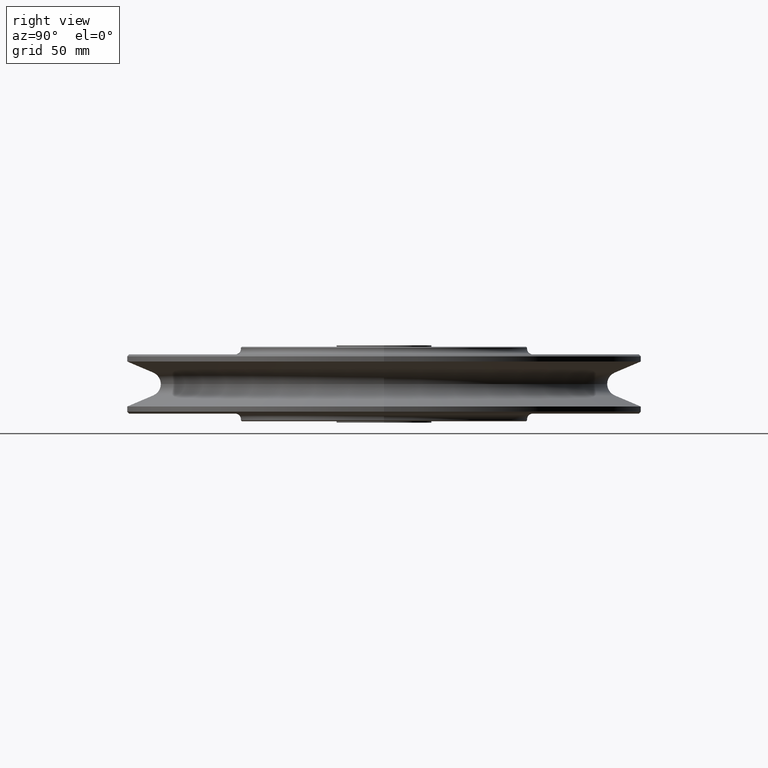
[diagram: clean part render]
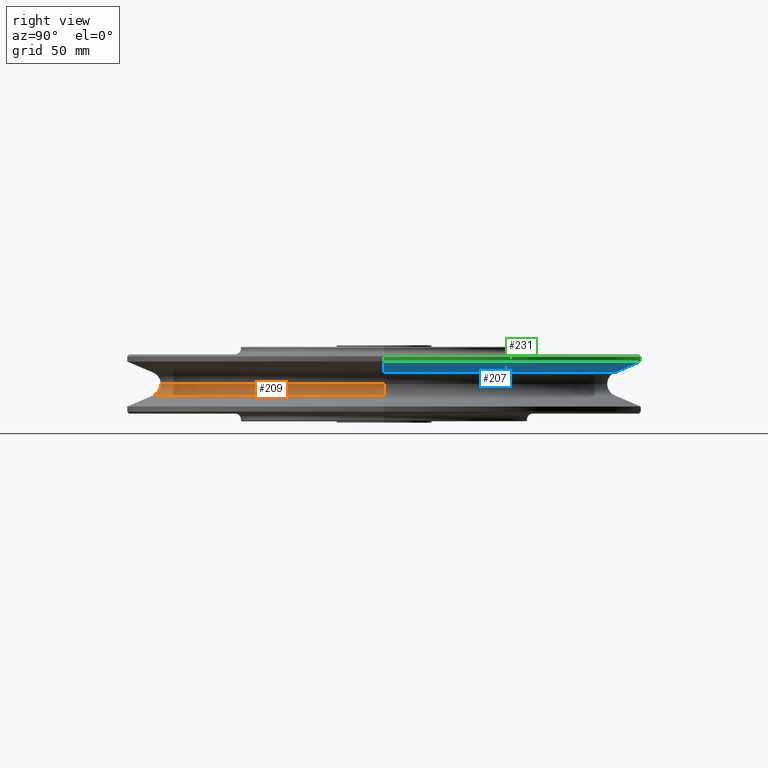
[diagram: same view with three faces highlighted in distinct colors, each labeled with its STEP entity id]
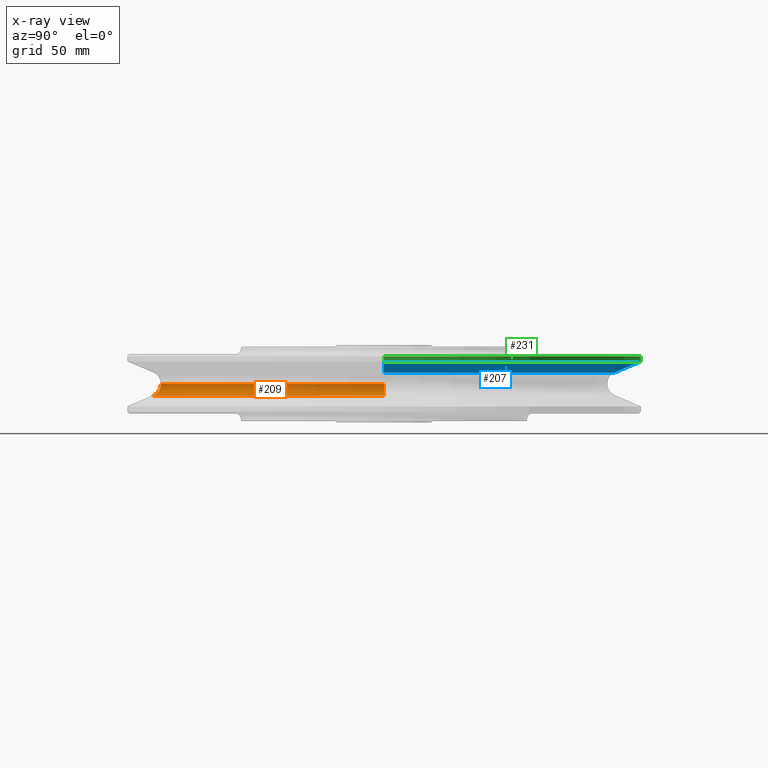
[diagram: x-ray of the same camera — body ghosted, the three highlighted faces saturated]
A machine part, right view with three faces highlighted in distinct colors.
The next image is the same camera in x-ray (body ghosted, the three faces saturated) — at least one of them is partly hidden behind the body in this view.
Their STEP definitions:

[orange] entity #209 — the highlighted toroidal blend (fillet) surface has major radius 123.5 mm and minor (blend) radius 6.5 mm.
#209=ADVANCED_FACE('',(#526),#527,.F.);
#526=FACE_OUTER_BOUND('',#976,.T.);
#527=TOROIDAL_SURFACE('',#977,123.4999998655,6.4999998655);
#976=EDGE_LOOP('',(#1535,#1536,#1537,#1538));
#977=AXIS2_PLACEMENT_3D('',#1539,#1540,#1541);
#1535=ORIENTED_EDGE('',*,*,#2919,.T.);
#1536=ORIENTED_EDGE('',*,*,#2926,.F.);
#1537=ORIENTED_EDGE('',*,*,#2927,.T.);
#1538=ORIENTED_EDGE('',*,*,#2928,.F.);
#1539=CARTESIAN_POINT('',(0.0,0.0,0.0));
#1540=DIRECTION('',(0.0,0.0,1.0));
#1541=DIRECTION('',(1.0,0.0,0.0));
#2919=EDGE_CURVE('',#3412,#3411,#3594,.T.);
#2926=EDGE_CURVE('',#3603,#3411,#3604,.T.);
#2927=EDGE_CURVE('',#3603,#3605,#3606,.T.);
#2928=EDGE_CURVE('',#3412,#3605,#3607,.T.);
#3411=VERTEX_POINT('',#4316);
#3412=VERTEX_POINT('',#4317);
#3594=CIRCLE('',#6011,117.0);
#3603=VERTEX_POINT('',#6022);
#3604=CIRCLE('',#6023,6.4999998655);
#3605=VERTEX_POINT('',#6024);
#3606=CIRCLE('',#6025,121.012558);
#3607=CIRCLE('',#6026,6.4999998655);
#4316=CARTESIAN_POINT('',(-117.0,1.38716009311259E-014,7.9602040297428E-016));
#4317=CARTESIAN_POINT('',(117.0,-1.38716009311259E-014,7.9602040297428E-016));
#6011=AXIS2_PLACEMENT_3D('',#10568,#10569,#10570);
#6022=CARTESIAN_POINT('',(-121.012558,1.48197641811333E-014,-6.005217));
#6023=AXIS2_PLACEMENT_3D('',#10579,#10580,#10581);
#6024=CARTESIAN_POINT('',(121.012558,0.0,-6.005217));
#6025=AXIS2_PLACEMENT_3D('',#10582,#10583,#10584);
#6026=AXIS2_PLACEMENT_3D('',#10585,#10586,#10587);
#10568=CARTESIAN_POINT('',(0.0,0.0,7.9602040297428E-016));
#10569=DIRECTION('',(-0.0,0.0,-1.0));
#10570=DIRECTION('',(-1.0,0.0,0.0));
#10579=CARTESIAN_POINT('',(-123.4999998655,1.51243879529983E-014,0.0));
#10580=DIRECTION('',(-1.22464679914735E-016,-1.0,0.0));
#10581=DIRECTION('',(-1.0,1.22464679914735E-016,-0.0));
#10582=CARTESIAN_POINT('',(0.0,0.0,-6.005217));
#10583=DIRECTION('',(0.0,0.0,1.0));
#10584=DIRECTION('',(1.0,0.0,0.0));
#10585=CARTESIAN_POINT('',(123.4999998655,-1.51243879529983E-014,0.0));
#10586=DIRECTION('',(-1.22464679914735E-016,-1.0,0.0));
#10587=DIRECTION('',(1.0,-1.22464679914735E-016,0.0));

[blue] entity #207 — the highlighted conical surface has half-angle 67.5 deg.
#207=ADVANCED_FACE('',(#523),#524,.T.);
#523=FACE_OUTER_BOUND('',#973,.T.);
#524=CONICAL_SURFACE('',#974,128.006279,1.17809722552658);
#973=EDGE_LOOP('',(#1527,#1528,#1529,#1530));
#974=AXIS2_PLACEMENT_3D('',#1531,#1532,#1533);
#1527=ORIENTED_EDGE('',*,*,#2922,.F.);
#1528=ORIENTED_EDGE('',*,*,#2818,.T.);
#1529=ORIENTED_EDGE('',*,*,#2923,.F.);
#1530=ORIENTED_EDGE('',*,*,#2924,.F.);
#1531=CARTESIAN_POINT('',(0.0,0.0,8.90211125));
#1532=DIRECTION('',(-0.0,-0.0,1.0));
#1533=DIRECTION('',(1.0,0.0,0.0));
#2818=EDGE_CURVE('',#3416,#3414,#3417,.T.);
#2922=EDGE_CURVE('',#3416,#3597,#3598,.T.);
#2923=EDGE_CURVE('',#3599,#3414,#3600,.T.);
#2924=EDGE_CURVE('',#3597,#3599,#3601,.T.);
#3414=VERTEX_POINT('',#4319);
#3416=VERTEX_POINT('',#4321);
#3417=CIRCLE('',#4322,121.012558);
#3597=VERTEX_POINT('',#6014);
#3598=LINE('',#6015,#6016);
#3599=VERTEX_POINT('',#6017);
#3600=LINE('',#6018,#6019);
#3601=CIRCLE('',#6020,135.0);
#4319=CARTESIAN_POINT('',(-121.012558,1.48197641811333E-014,6.005217));
#4321=CARTESIAN_POINT('',(121.012558,0.0,6.005217));
#4322=AXIS2_PLACEMENT_3D('',#10436,#10437,#10438);
#6014=CARTESIAN_POINT('',(135.0,0.0,11.7990055));
#6015=CARTESIAN_POINT('',(128.006279,-1.56762479848113E-014,8.90211125));
#6016=VECTOR('',#10574,1.0);
#6017=CARTESIAN_POINT('',(-135.0,1.65327317884893E-014,11.7990055));
#6018=CARTESIAN_POINT('',(-128.006279,1.56762479848113E-014,8.90211125));
#6019=VECTOR('',#10575,1.0);
#6020=AXIS2_PLACEMENT_3D('',#10576,#10577,#10578);
#10436=CARTESIAN_POINT('',(0.0,0.0,6.005217));
#10437=DIRECTION('',(0.0,0.0,1.0));
#10438=DIRECTION('',(1.0,0.0,0.0));
#10574=DIRECTION('',(0.923879525022327,-1.13142610311637E-016,0.382683450445036));
#10575=DIRECTION('',(0.923879525022327,-1.13142610311637E-016,-0.382683450445036));
#10576=CARTESIAN_POINT('',(0.0,0.0,11.7990055));
#10577=DIRECTION('',(0.0,0.0,1.0));
#10578=DIRECTION('',(1.0,0.0,0.0));

[green] entity #231 — the highlighted cylindrical surface (partial cylindrical patch) has radius 135 mm, axis along (0, 0, 1).
#231=ADVANCED_FACE('',(#559),#560,.T.);
#559=FACE_OUTER_BOUND('',#1009,.T.);
#560=CYLINDRICAL_SURFACE('',#1010,135.0);
#1009=EDGE_LOOP('',(#1623,#1624,#1625,#1626));
#1010=AXIS2_PLACEMENT_3D('',#1627,#1628,#1629);
#1623=ORIENTED_EDGE('',*,*,#2976,.F.);
#1624=ORIENTED_EDGE('',*,*,#2924,.T.);
#1625=ORIENTED_EDGE('',*,*,#2977,.F.);
#1626=ORIENTED_EDGE('',*,*,#2972,.F.);
#1627=CARTESIAN_POINT('',(0.0,0.0,13.14950275));
#1628=DIRECTION('',(0.0,0.0,1.0));
#1629=DIRECTION('',(1.0,0.0,0.0));
#2924=EDGE_CURVE('',#3597,#3599,#3601,.T.);
#2972=EDGE_CURVE('',#3672,#3675,#3676,.T.);
#2976=EDGE_CURVE('',#3597,#3672,#3681,.T.);
#2977=EDGE_CURVE('',#3675,#3599,#3682,.T.);
#3597=VERTEX_POINT('',#6014);
#3599=VERTEX_POINT('',#6017);
#3601=CIRCLE('',#6020,135.0);
#3672=VERTEX_POINT('',#6105);
#3675=VERTEX_POINT('',#6109);
#3676=CIRCLE('',#6110,135.0);
#3681=LINE('',#6116,#6117);
#3682=LINE('',#6118,#6119);
#6014=CARTESIAN_POINT('',(135.0,0.0,11.7990055));
#6017=CARTESIAN_POINT('',(-135.0,1.65327317884893E-014,11.7990055));
#6020=AXIS2_PLACEMENT_3D('',#10576,#10577,#10578);
#6105=CARTESIAN_POINT('',(135.0,0.0,14.5));
#6109=CARTESIAN_POINT('',(-135.0,1.65327317884893E-014,14.5));
#6110=AXIS2_PLACEMENT_3D('',#10657,#10658,#10659);
#6116=CARTESIAN_POINT('',(135.0,-1.65327317884893E-014,13.14950275));
#6117=VECTOR('',#10664,1.0);
#6118=CARTESIAN_POINT('',(-135.0,1.65327317884893E-014,13.14950275));
#6119=VECTOR('',#10665,1.0);
#10576=CARTESIAN_POINT('',(0.0,0.0,11.7990055));
#10577=DIRECTION('',(0.0,0.0,1.0));
#10578=DIRECTION('',(1.0,0.0,0.0));
#10657=CARTESIAN_POINT('',(0.0,0.0,14.5));
#10658=DIRECTION('',(0.0,0.0,1.0));
#10659=DIRECTION('',(1.0,0.0,0.0));
#10664=DIRECTION('',(0.0,0.0,1.0));
#10665=DIRECTION('',(-0.0,-0.0,-1.0));